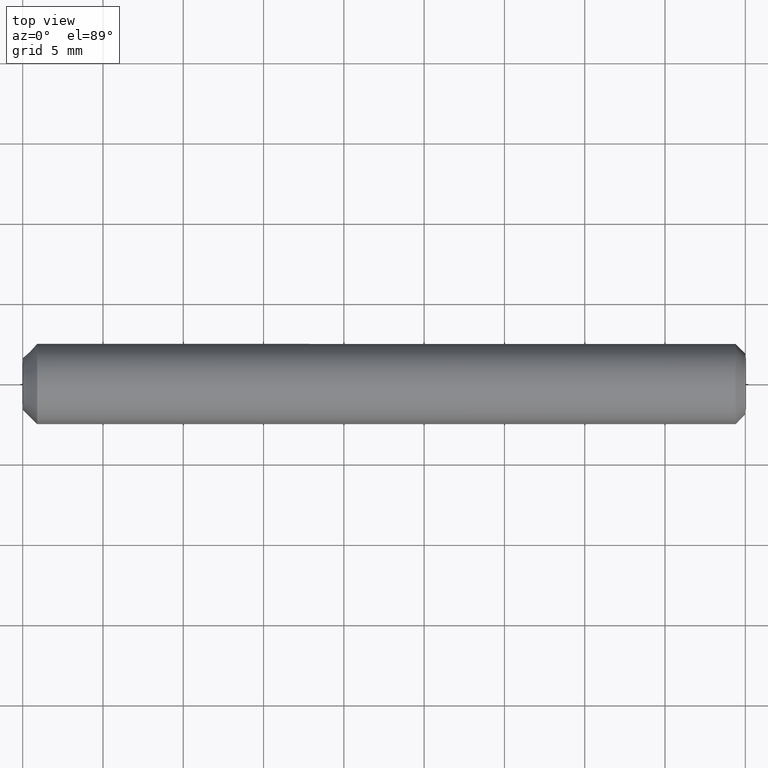
[diagram: clean part render]
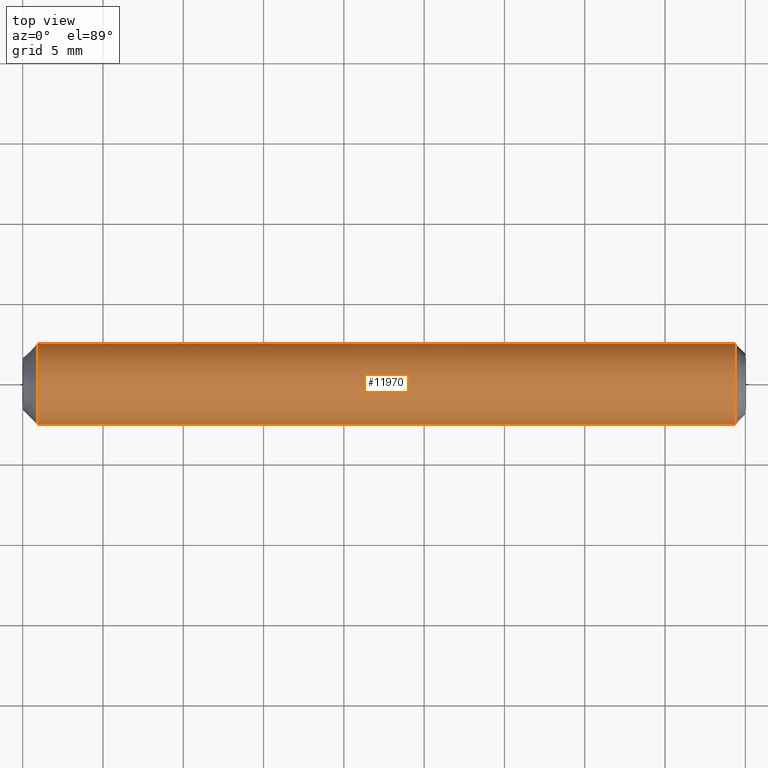
[diagram: same view with one face highlighted and labeled with its STEP entity id]
A machine part, top view. The second image highlights one B-rep face of the part: STEP entity #11970.
In plain terms, the highlighted cylindrical surface (bore or boss wall) has radius 2.5 mm, axis along (-1, -0, -0).
Its self-contained STEP definition (entity closure, byte-faithful):
#202 = AXIS2_PLACEMENT_3D ( 'NONE', #3242, #11850, #16324 ) ;
#245 = CIRCLE ( 'NONE', #14493, 2.500000000000000000 ) ;
#350 = CARTESIAN_POINT ( 'NONE',  ( 44.39999999999999100, 0.0000000000000000000, -2.500000000000000000 ) ) ;
#813 = AXIS2_PLACEMENT_3D ( 'NONE', #18564, #5616, #17266 ) ;
#2964 = CARTESIAN_POINT ( 'NONE',  ( 0.8999999999999839200, -2.500000000000000000, 0.0000000000000000000 ) ) ;
#3242 = CARTESIAN_POINT ( 'NONE',  ( 45.00000000000000000, 0.0000000000000000000, 0.0000000000000000000 ) ) ;
#4081 = FACE_OUTER_BOUND ( 'NONE', #16688, .T. ) ;
#5202 = EDGE_LOOP ( 'NONE', ( #6136 ) ) ;
#5616 = DIRECTION ( 'NONE',  ( -1.000000000000000000, 5.043320290719296800E-017, -0.0000000000000000000 ) ) ;
#6136 = ORIENTED_EDGE ( 'NONE', *, *, #16281, .F. ) ;
#7135 = DIRECTION ( 'NONE',  ( 0.0000000000000000000, 0.0000000000000000000, -1.000000000000000000 ) ) ;
#7791 = VERTEX_POINT ( 'NONE', #2964 ) ;
#8722 = CIRCLE ( 'NONE', #813, 2.500000000000000000 ) ;
#10034 = DIRECTION ( 'NONE',  ( -1.000000000000000000, 0.0000000000000000000, 0.0000000000000000000 ) ) ;
#10097 = CARTESIAN_POINT ( 'NONE',  ( 44.39999999999999100, 0.0000000000000000000, 0.0000000000000000000 ) ) ;
#11271 = CYLINDRICAL_SURFACE ( 'NONE', #202, 2.500000000000000000 ) ;
#11850 = DIRECTION ( 'NONE',  ( -1.000000000000000000, -0.0000000000000000000, -0.0000000000000000000 ) ) ;
#11970 = ADVANCED_FACE ( 'NONE', ( #4081, #17586 ), #11271, .T. ) ;
#12239 = ORIENTED_EDGE ( 'NONE', *, *, #15569, .T. ) ;
#14493 = AXIS2_PLACEMENT_3D ( 'NONE', #10097, #10034, #7135 ) ;
#15569 = EDGE_CURVE ( 'NONE', #17708, #17708, #245, .T. ) ;
#16281 = EDGE_CURVE ( 'NONE', #7791, #7791, #8722, .T. ) ;
#16324 = DIRECTION ( 'NONE',  ( 0.0000000000000000000, 0.0000000000000000000, 1.000000000000000000 ) ) ;
#16688 = EDGE_LOOP ( 'NONE', ( #12239 ) ) ;
#17266 = DIRECTION ( 'NONE',  ( -4.336808689942017700E-017, -1.000000000000000000, 0.0000000000000000000 ) ) ;
#17586 = FACE_OUTER_BOUND ( 'NONE', #5202, .T. ) ;
#17708 = VERTEX_POINT ( 'NONE', #350 ) ;
#18564 = CARTESIAN_POINT ( 'NONE',  ( 0.8999999999999840300, -4.538988261647287100E-017, 0.0000000000000000000 ) ) ;